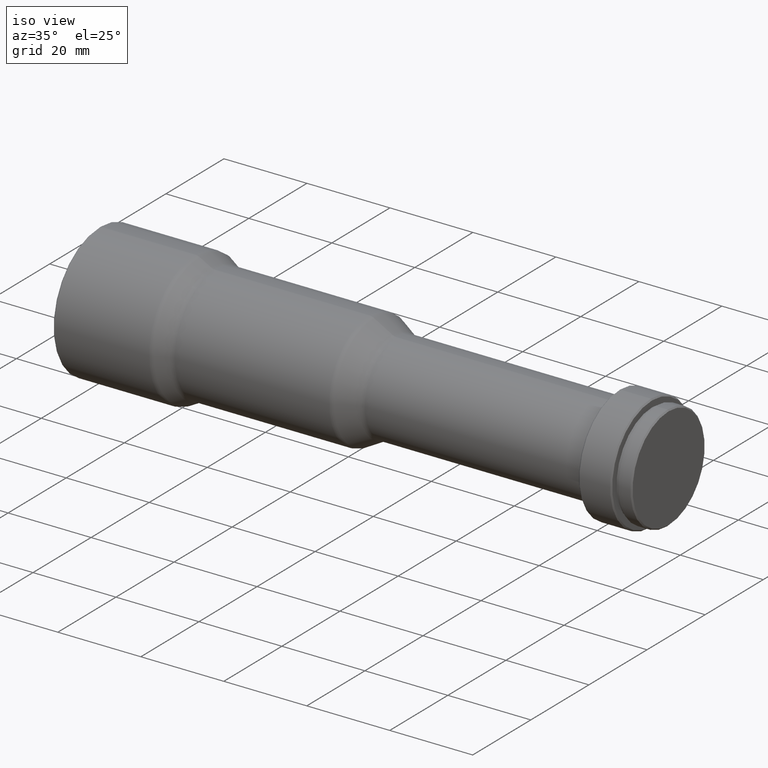
[diagram: clean part render]
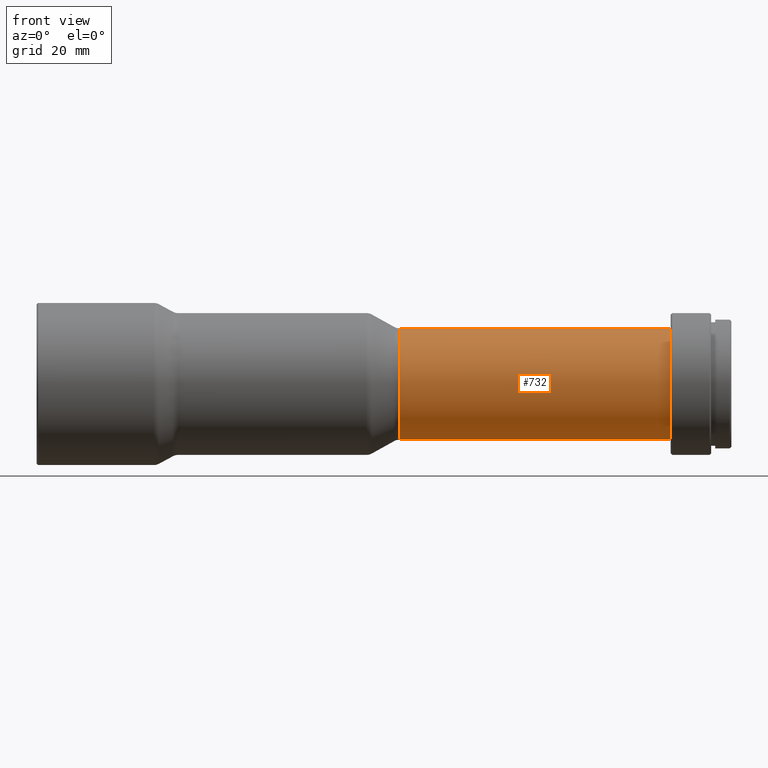
[diagram: tour spotlight — one face highlighted and labeled with its STEP entity id]
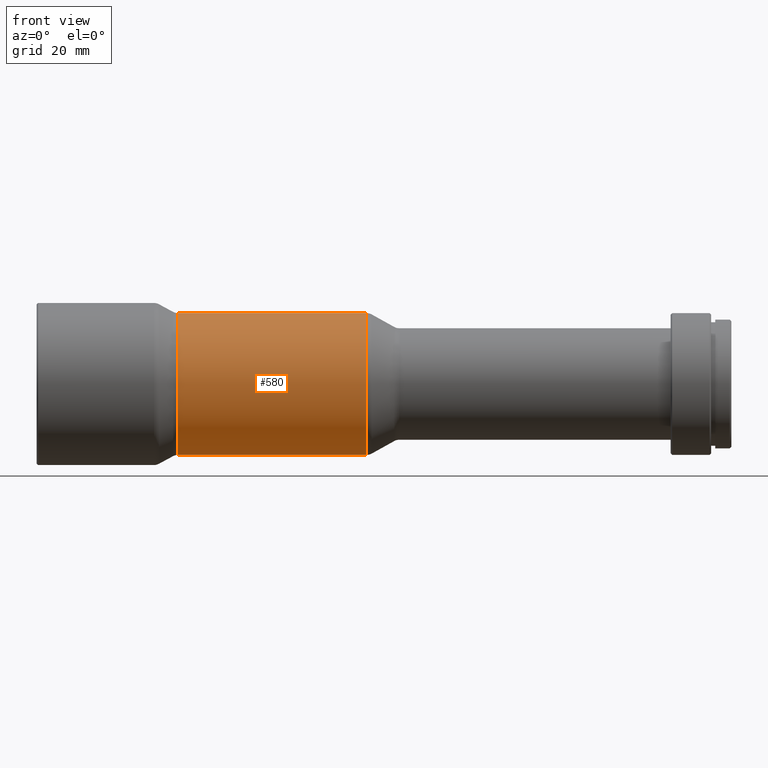
[diagram: tour spotlight — one face highlighted and labeled with its STEP entity id]
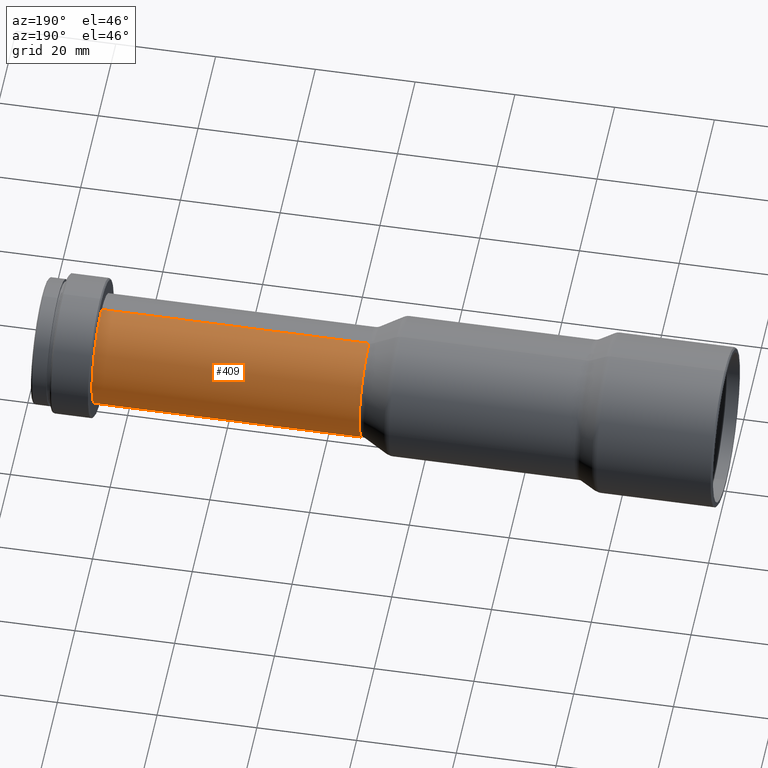
[diagram: tour spotlight — one face highlighted and labeled with its STEP entity id]
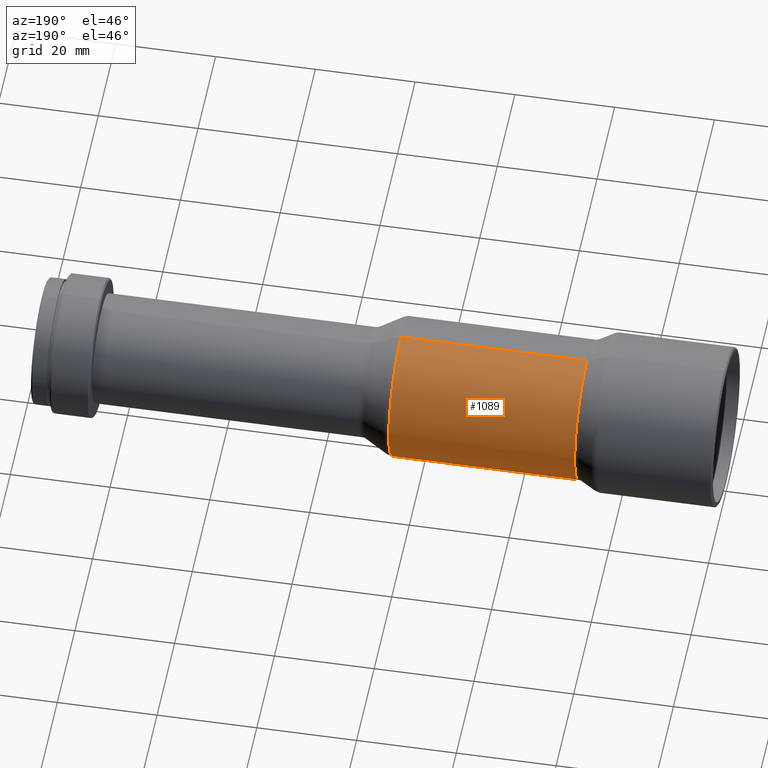
[diagram: tour spotlight — one face highlighted and labeled with its STEP entity id]
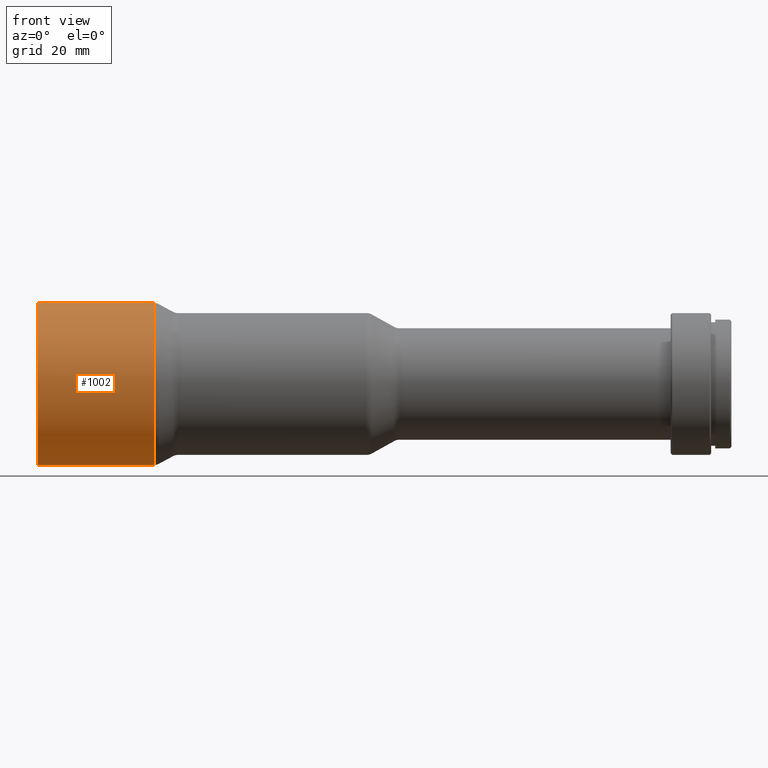
[diagram: tour spotlight — one face highlighted and labeled with its STEP entity id]
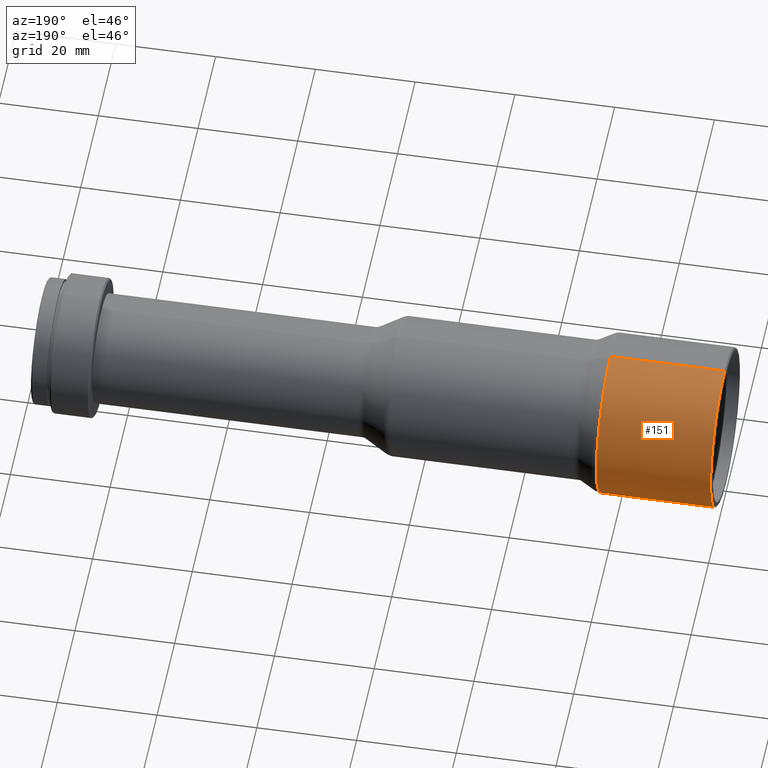
[diagram: tour spotlight — one face highlighted and labeled with its STEP entity id]
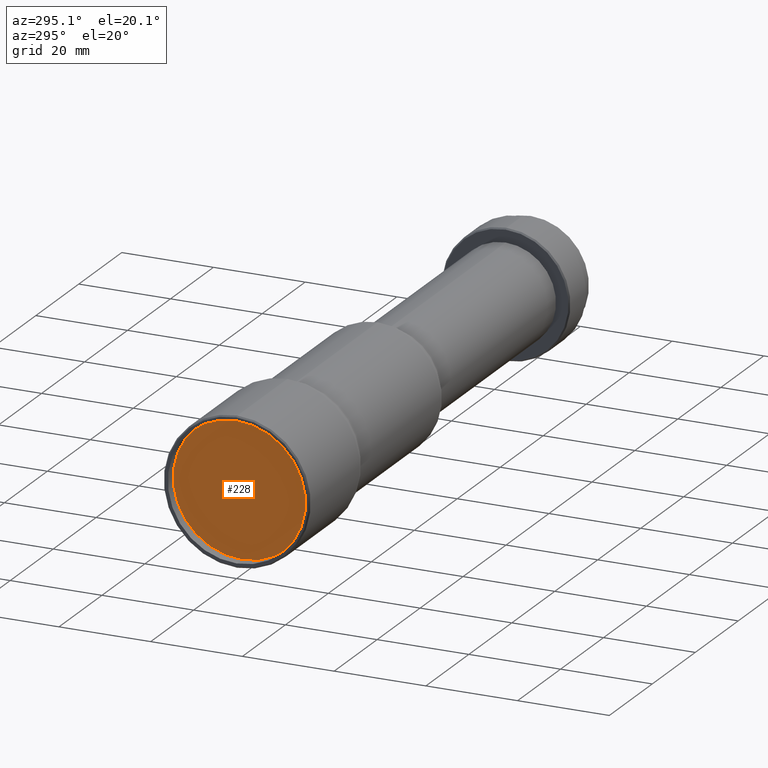
[diagram: tour spotlight — one face highlighted and labeled with its STEP entity id]
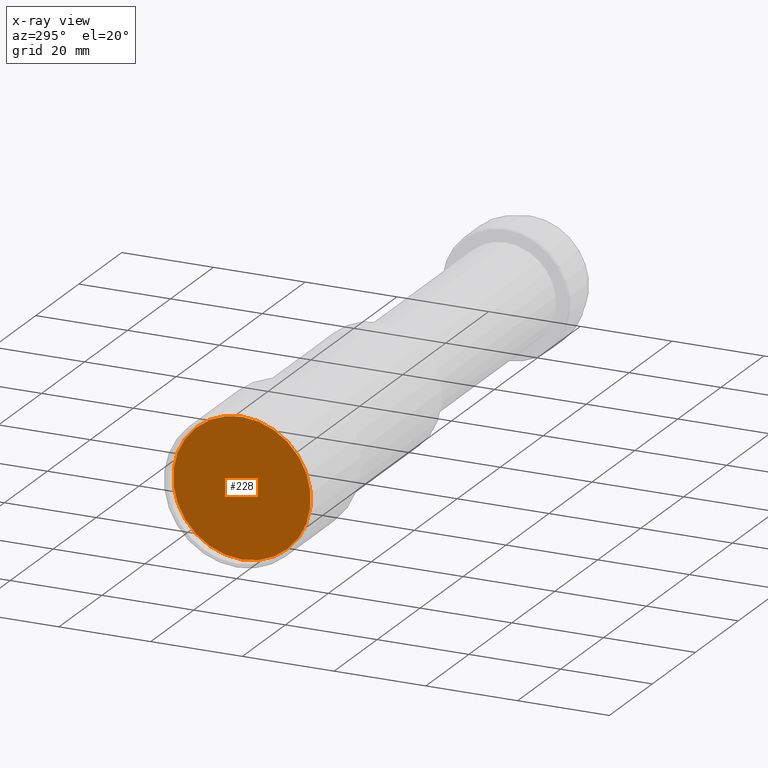
[diagram: x-ray of the same camera — body ghosted, this tour face saturated]
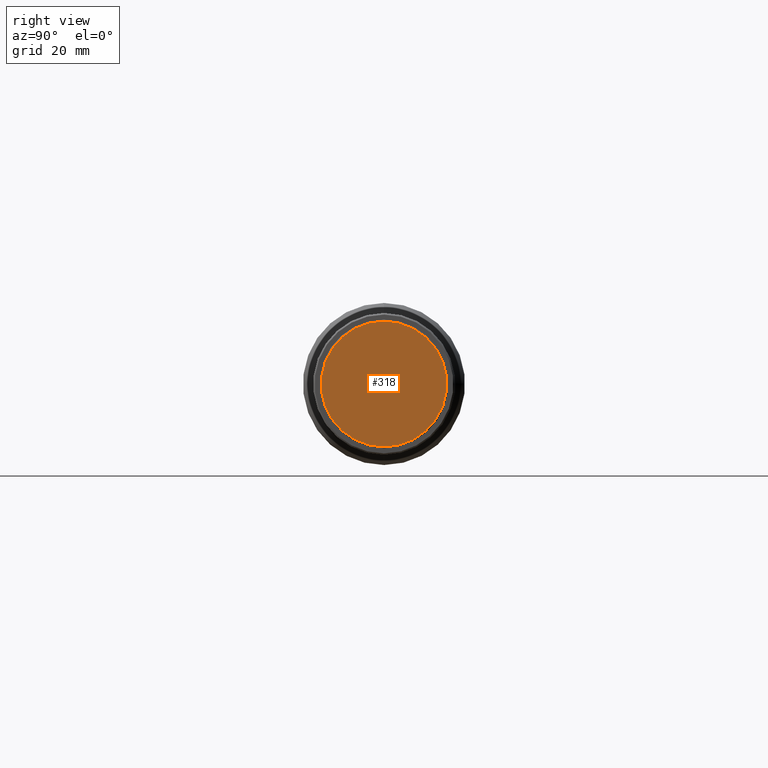
[diagram: tour spotlight — one face highlighted and labeled with its STEP entity id]
A machine part: a face-by-face anatomy tour. The part has 40 B-rep faces; the first image is the clean iso view, then the 8 largest visible faces are spotlighted one at a time (largest first), each with its STEP entity span.

Face 1 — front view, entity #732. In plain terms, the highlighted cylindrical surface (partial cylindrical patch) has radius 11 mm, axis along (-1, -0, -0).
Definition (entity closure, byte-faithful):
#23 = ORIENTED_EDGE ( 'NONE', *, *, #183, .T. ) ;
#59 = AXIS2_PLACEMENT_3D ( 'NONE', #166, #941, #923 ) ;
#104 = CARTESIAN_POINT ( 'NONE',  ( 125.1999999999999700, 0.0000000000000000000, 11.00000000000000000 ) ) ;
#166 = CARTESIAN_POINT ( 'NONE',  ( 71.61825205639480900, 0.0000000000000000000, 0.0000000000000000000 ) ) ;
#183 = EDGE_CURVE ( 'NONE', #1058, #799, #1022, .T. ) ;
#212 = ORIENTED_EDGE ( 'NONE', *, *, #367, .F. ) ;
#288 = CIRCLE ( 'NONE', #59, 11.00000000000000000 ) ;
#322 = CARTESIAN_POINT ( 'NONE',  ( 125.1999999999999700, 1.347111479062088400E-015, -11.00000000000000000 ) ) ;
#343 = VERTEX_POINT ( 'NONE', #933 ) ;
#350 = FACE_OUTER_BOUND ( 'NONE', #572, .T. ) ;
#355 = ORIENTED_EDGE ( 'NONE', *, *, #685, .T. ) ;
#367 = EDGE_CURVE ( 'NONE', #810, #343, #288, .T. ) ;
#452 = DIRECTION ( 'NONE',  ( -1.000000000000000000, -0.0000000000000000000, -0.0000000000000000000 ) ) ;
#461 = ORIENTED_EDGE ( 'NONE', *, *, #899, .F. ) ;
#466 = VECTOR ( 'NONE', #655, 1000.000000000000000 ) ;
#468 = CYLINDRICAL_SURFACE ( 'NONE', #561, 11.00000000000000000 ) ;
#469 = CARTESIAN_POINT ( 'NONE',  ( 71.61825205639480900, 1.347111479062088400E-015, -11.00000000000000000 ) ) ;
#492 = CARTESIAN_POINT ( 'NONE',  ( -3.741758549102351900, 1.347111479062088400E-015, -11.00000000000000000 ) ) ;
#543 = DIRECTION ( 'NONE',  ( 0.0000000000000000000, 0.0000000000000000000, 1.000000000000000000 ) ) ;
#556 = DIRECTION ( 'NONE',  ( -1.000000000000000000, -0.0000000000000000000, -0.0000000000000000000 ) ) ;
#561 = AXIS2_PLACEMENT_3D ( 'NONE', #627, #556, #543 ) ;
#572 = EDGE_LOOP ( 'NONE', ( #461, #23, #355, #212 ) ) ;
#627 = CARTESIAN_POINT ( 'NONE',  ( -3.741758549102351900, 0.0000000000000000000, 0.0000000000000000000 ) ) ;
#655 = DIRECTION ( 'NONE',  ( -1.000000000000000000, -0.0000000000000000000, -0.0000000000000000000 ) ) ;
#665 = CARTESIAN_POINT ( 'NONE',  ( 125.1999999999999700, 0.0000000000000000000, 0.0000000000000000000 ) ) ;
#685 = EDGE_CURVE ( 'NONE', #799, #343, #1039, .T. ) ;
#694 = VECTOR ( 'NONE', #452, 1000.000000000000000 ) ;
#732 = ADVANCED_FACE ( 'NONE', ( #350 ), #468, .T. ) ;
#799 = VERTEX_POINT ( 'NONE', #104 ) ;
#810 = VERTEX_POINT ( 'NONE', #469 ) ;
#862 = AXIS2_PLACEMENT_3D ( 'NONE', #665, #1003, #1101 ) ;
#899 = EDGE_CURVE ( 'NONE', #1058, #810, #949, .T. ) ;
#923 = DIRECTION ( 'NONE',  ( 0.0000000000000000000, 0.0000000000000000000, 1.000000000000000000 ) ) ;
#933 = CARTESIAN_POINT ( 'NONE',  ( 71.61825205639480900, 0.0000000000000000000, 11.00000000000000000 ) ) ;
#941 = DIRECTION ( 'NONE',  ( -1.000000000000000000, -0.0000000000000000000, -0.0000000000000000000 ) ) ;
#945 = CARTESIAN_POINT ( 'NONE',  ( -3.741758549102351900, 0.0000000000000000000, 11.00000000000000000 ) ) ;
#949 = LINE ( 'NONE', #492, #466 ) ;
#1003 = DIRECTION ( 'NONE',  ( -1.000000000000000000, -0.0000000000000000000, -0.0000000000000000000 ) ) ;
#1022 = CIRCLE ( 'NONE', #862, 11.00000000000000000 ) ;
#1039 = LINE ( 'NONE', #945, #694 ) ;
#1058 = VERTEX_POINT ( 'NONE', #322 ) ;
#1101 = DIRECTION ( 'NONE',  ( 0.0000000000000000000, 0.0000000000000000000, 1.000000000000000000 ) ) ;

Face 2 — front view, entity #580. In plain terms, the highlighted cylindrical surface (partial cylindrical patch) has radius 14 mm, axis along (-1, -0, -0).
Definition (entity closure, byte-faithful):
#4 = VECTOR ( 'NONE', #53, 1000.000000000000000 ) ;
#53 = DIRECTION ( 'NONE',  ( -1.000000000000000000, -0.0000000000000000000, -0.0000000000000000000 ) ) ;
#66 = VERTEX_POINT ( 'NONE', #566 ) ;
#74 = AXIS2_PLACEMENT_3D ( 'NONE', #390, #887, #1079 ) ;
#81 = DIRECTION ( 'NONE',  ( -1.000000000000000000, -0.0000000000000000000, -0.0000000000000000000 ) ) ;
#126 = VERTEX_POINT ( 'NONE', #811 ) ;
#138 = CARTESIAN_POINT ( 'NONE',  ( -3.741758549102351900, 0.0000000000000000000, 0.0000000000000000000 ) ) ;
#279 = ORIENTED_EDGE ( 'NONE', *, *, #841, .T. ) ;
#312 = DIRECTION ( 'NONE',  ( 0.0000000000000000000, 0.0000000000000000000, 1.000000000000000000 ) ) ;
#320 = DIRECTION ( 'NONE',  ( -1.000000000000000000, -0.0000000000000000000, -0.0000000000000000000 ) ) ;
#361 = AXIS2_PLACEMENT_3D ( 'NONE', #138, #81, #312 ) ;
#377 = LINE ( 'NONE', #982, #4 ) ;
#385 = CARTESIAN_POINT ( 'NONE',  ( -3.741758549102351900, 1.714505518806294800E-015, -14.00000000000000400 ) ) ;
#390 = CARTESIAN_POINT ( 'NONE',  ( 65.18174794360518800, 0.0000000000000000000, 0.0000000000000000000 ) ) ;
#418 = DIRECTION ( 'NONE',  ( 0.0000000000000000000, 0.0000000000000000000, 1.000000000000000000 ) ) ;
#438 = CARTESIAN_POINT ( 'NONE',  ( 27.90594816896262700, 1.714505518806294800E-015, -14.00000000000000200 ) ) ;
#479 = FACE_OUTER_BOUND ( 'NONE', #647, .T. ) ;
#522 = ORIENTED_EDGE ( 'NONE', *, *, #881, .F. ) ;
#566 = CARTESIAN_POINT ( 'NONE',  ( 65.18174794360518800, 0.0000000000000000000, 14.00000000000000500 ) ) ;
#569 = CARTESIAN_POINT ( 'NONE',  ( 27.90594816896262700, 0.0000000000000000000, 14.00000000000000200 ) ) ;
#580 = ADVANCED_FACE ( 'NONE', ( #479 ), #924, .T. ) ;
#647 = EDGE_LOOP ( 'NONE', ( #522, #279, #1045, #1001 ) ) ;
#713 = CIRCLE ( 'NONE', #983, 14.00000000000000200 ) ;
#726 = VECTOR ( 'NONE', #1093, 1000.000000000000000 ) ;
#739 = LINE ( 'NONE', #385, #726 ) ;
#763 = CIRCLE ( 'NONE', #74, 14.00000000000000500 ) ;
#811 = CARTESIAN_POINT ( 'NONE',  ( 65.18174794360518800, 1.714505518806294800E-015, -14.00000000000000500 ) ) ;
#841 = EDGE_CURVE ( 'NONE', #126, #66, #763, .T. ) ;
#847 = EDGE_CURVE ( 'NONE', #66, #970, #377, .T. ) ;
#881 = EDGE_CURVE ( 'NONE', #126, #1068, #739, .T. ) ;
#887 = DIRECTION ( 'NONE',  ( -1.000000000000000000, -0.0000000000000000000, -0.0000000000000000000 ) ) ;
#924 = CYLINDRICAL_SURFACE ( 'NONE', #361, 14.00000000000000400 ) ;
#930 = CARTESIAN_POINT ( 'NONE',  ( 27.90594816896262700, 0.0000000000000000000, 0.0000000000000000000 ) ) ;
#970 = VERTEX_POINT ( 'NONE', #569 ) ;
#982 = CARTESIAN_POINT ( 'NONE',  ( -3.741758549102351900, 0.0000000000000000000, 14.00000000000000400 ) ) ;
#983 = AXIS2_PLACEMENT_3D ( 'NONE', #930, #320, #418 ) ;
#996 = EDGE_CURVE ( 'NONE', #1068, #970, #713, .T. ) ;
#1001 = ORIENTED_EDGE ( 'NONE', *, *, #996, .F. ) ;
#1045 = ORIENTED_EDGE ( 'NONE', *, *, #847, .T. ) ;
#1068 = VERTEX_POINT ( 'NONE', #438 ) ;
#1079 = DIRECTION ( 'NONE',  ( 0.0000000000000000000, 0.0000000000000000000, 1.000000000000000000 ) ) ;
#1093 = DIRECTION ( 'NONE',  ( -1.000000000000000000, -0.0000000000000000000, -0.0000000000000000000 ) ) ;

Face 3 — auxiliary view, entity #409. In plain terms, the highlighted cylindrical surface (partial cylindrical patch) has radius 11 mm, axis along (-1, -0, -0).
Definition (entity closure, byte-faithful):
#93 = CARTESIAN_POINT ( 'NONE',  ( -3.741758549102351900, 0.0000000000000000000, 0.0000000000000000000 ) ) ;
#104 = CARTESIAN_POINT ( 'NONE',  ( 125.1999999999999700, 0.0000000000000000000, 11.00000000000000000 ) ) ;
#113 = CIRCLE ( 'NONE', #120, 11.00000000000000000 ) ;
#119 = EDGE_CURVE ( 'NONE', #799, #1058, #113, .T. ) ;
#120 = AXIS2_PLACEMENT_3D ( 'NONE', #975, #389, #1078 ) ;
#173 = CARTESIAN_POINT ( 'NONE',  ( 71.61825205639480900, 0.0000000000000000000, 0.0000000000000000000 ) ) ;
#235 = AXIS2_PLACEMENT_3D ( 'NONE', #93, #628, #860 ) ;
#238 = EDGE_LOOP ( 'NONE', ( #487, #408, #748, #900 ) ) ;
#246 = DIRECTION ( 'NONE',  ( -1.000000000000000000, -0.0000000000000000000, -0.0000000000000000000 ) ) ;
#310 = EDGE_CURVE ( 'NONE', #343, #810, #514, .T. ) ;
#322 = CARTESIAN_POINT ( 'NONE',  ( 125.1999999999999700, 1.347111479062088400E-015, -11.00000000000000000 ) ) ;
#343 = VERTEX_POINT ( 'NONE', #933 ) ;
#389 = DIRECTION ( 'NONE',  ( -1.000000000000000000, -0.0000000000000000000, -0.0000000000000000000 ) ) ;
#408 = ORIENTED_EDGE ( 'NONE', *, *, #899, .T. ) ;
#409 = ADVANCED_FACE ( 'NONE', ( #456 ), #706, .T. ) ;
#452 = DIRECTION ( 'NONE',  ( -1.000000000000000000, -0.0000000000000000000, -0.0000000000000000000 ) ) ;
#456 = FACE_OUTER_BOUND ( 'NONE', #238, .T. ) ;
#466 = VECTOR ( 'NONE', #655, 1000.000000000000000 ) ;
#469 = CARTESIAN_POINT ( 'NONE',  ( 71.61825205639480900, 1.347111479062088400E-015, -11.00000000000000000 ) ) ;
#487 = ORIENTED_EDGE ( 'NONE', *, *, #119, .T. ) ;
#492 = CARTESIAN_POINT ( 'NONE',  ( -3.741758549102351900, 1.347111479062088400E-015, -11.00000000000000000 ) ) ;
#514 = CIRCLE ( 'NONE', #716, 11.00000000000000000 ) ;
#628 = DIRECTION ( 'NONE',  ( -1.000000000000000000, -0.0000000000000000000, -0.0000000000000000000 ) ) ;
#655 = DIRECTION ( 'NONE',  ( -1.000000000000000000, -0.0000000000000000000, -0.0000000000000000000 ) ) ;
#685 = EDGE_CURVE ( 'NONE', #799, #343, #1039, .T. ) ;
#694 = VECTOR ( 'NONE', #452, 1000.000000000000000 ) ;
#706 = CYLINDRICAL_SURFACE ( 'NONE', #235, 11.00000000000000000 ) ;
#716 = AXIS2_PLACEMENT_3D ( 'NONE', #173, #246, #768 ) ;
#748 = ORIENTED_EDGE ( 'NONE', *, *, #310, .F. ) ;
#768 = DIRECTION ( 'NONE',  ( 0.0000000000000000000, 0.0000000000000000000, 1.000000000000000000 ) ) ;
#799 = VERTEX_POINT ( 'NONE', #104 ) ;
#810 = VERTEX_POINT ( 'NONE', #469 ) ;
#860 = DIRECTION ( 'NONE',  ( 0.0000000000000000000, 0.0000000000000000000, 1.000000000000000000 ) ) ;
#899 = EDGE_CURVE ( 'NONE', #1058, #810, #949, .T. ) ;
#900 = ORIENTED_EDGE ( 'NONE', *, *, #685, .F. ) ;
#933 = CARTESIAN_POINT ( 'NONE',  ( 71.61825205639480900, 0.0000000000000000000, 11.00000000000000000 ) ) ;
#945 = CARTESIAN_POINT ( 'NONE',  ( -3.741758549102351900, 0.0000000000000000000, 11.00000000000000000 ) ) ;
#949 = LINE ( 'NONE', #492, #466 ) ;
#975 = CARTESIAN_POINT ( 'NONE',  ( 125.1999999999999700, 0.0000000000000000000, 0.0000000000000000000 ) ) ;
#1039 = LINE ( 'NONE', #945, #694 ) ;
#1058 = VERTEX_POINT ( 'NONE', #322 ) ;
#1078 = DIRECTION ( 'NONE',  ( 0.0000000000000000000, 0.0000000000000000000, 1.000000000000000000 ) ) ;

Face 4 — auxiliary view, entity #1089. In plain terms, the highlighted cylindrical surface (partial cylindrical patch) has radius 14 mm, axis along (-1, -0, -0).
Definition (entity closure, byte-faithful):
#4 = VECTOR ( 'NONE', #53, 1000.000000000000000 ) ;
#21 = CARTESIAN_POINT ( 'NONE',  ( -3.741758549102351900, 0.0000000000000000000, 0.0000000000000000000 ) ) ;
#26 = DIRECTION ( 'NONE',  ( 0.0000000000000000000, 0.0000000000000000000, 1.000000000000000000 ) ) ;
#39 = ORIENTED_EDGE ( 'NONE', *, *, #209, .F. ) ;
#53 = DIRECTION ( 'NONE',  ( -1.000000000000000000, -0.0000000000000000000, -0.0000000000000000000 ) ) ;
#66 = VERTEX_POINT ( 'NONE', #566 ) ;
#92 = DIRECTION ( 'NONE',  ( 0.0000000000000000000, 0.0000000000000000000, 1.000000000000000000 ) ) ;
#96 = CARTESIAN_POINT ( 'NONE',  ( 65.18174794360518800, 0.0000000000000000000, 0.0000000000000000000 ) ) ;
#126 = VERTEX_POINT ( 'NONE', #811 ) ;
#152 = CARTESIAN_POINT ( 'NONE',  ( 27.90594816896262700, 0.0000000000000000000, 0.0000000000000000000 ) ) ;
#182 = FACE_OUTER_BOUND ( 'NONE', #891, .T. ) ;
#209 = EDGE_CURVE ( 'NONE', #970, #1068, #1053, .T. ) ;
#236 = DIRECTION ( 'NONE',  ( -1.000000000000000000, -0.0000000000000000000, -0.0000000000000000000 ) ) ;
#377 = LINE ( 'NONE', #982, #4 ) ;
#385 = CARTESIAN_POINT ( 'NONE',  ( -3.741758549102351900, 1.714505518806294800E-015, -14.00000000000000400 ) ) ;
#438 = CARTESIAN_POINT ( 'NONE',  ( 27.90594816896262700, 1.714505518806294800E-015, -14.00000000000000200 ) ) ;
#444 = DIRECTION ( 'NONE',  ( -1.000000000000000000, -0.0000000000000000000, -0.0000000000000000000 ) ) ;
#464 = ORIENTED_EDGE ( 'NONE', *, *, #614, .T. ) ;
#481 = AXIS2_PLACEMENT_3D ( 'NONE', #21, #444, #92 ) ;
#566 = CARTESIAN_POINT ( 'NONE',  ( 65.18174794360518800, 0.0000000000000000000, 14.00000000000000500 ) ) ;
#569 = CARTESIAN_POINT ( 'NONE',  ( 27.90594816896262700, 0.0000000000000000000, 14.00000000000000200 ) ) ;
#595 = DIRECTION ( 'NONE',  ( 0.0000000000000000000, 0.0000000000000000000, 1.000000000000000000 ) ) ;
#614 = EDGE_CURVE ( 'NONE', #66, #126, #882, .T. ) ;
#701 = DIRECTION ( 'NONE',  ( -1.000000000000000000, -0.0000000000000000000, -0.0000000000000000000 ) ) ;
#726 = VECTOR ( 'NONE', #1093, 1000.000000000000000 ) ;
#739 = LINE ( 'NONE', #385, #726 ) ;
#750 = AXIS2_PLACEMENT_3D ( 'NONE', #152, #236, #595 ) ;
#811 = CARTESIAN_POINT ( 'NONE',  ( 65.18174794360518800, 1.714505518806294800E-015, -14.00000000000000500 ) ) ;
#847 = EDGE_CURVE ( 'NONE', #66, #970, #377, .T. ) ;
#849 = ORIENTED_EDGE ( 'NONE', *, *, #881, .T. ) ;
#877 = CYLINDRICAL_SURFACE ( 'NONE', #481, 14.00000000000000400 ) ;
#881 = EDGE_CURVE ( 'NONE', #126, #1068, #739, .T. ) ;
#882 = CIRCLE ( 'NONE', #931, 14.00000000000000500 ) ;
#891 = EDGE_LOOP ( 'NONE', ( #464, #849, #39, #986 ) ) ;
#931 = AXIS2_PLACEMENT_3D ( 'NONE', #96, #701, #26 ) ;
#970 = VERTEX_POINT ( 'NONE', #569 ) ;
#982 = CARTESIAN_POINT ( 'NONE',  ( -3.741758549102351900, 0.0000000000000000000, 14.00000000000000400 ) ) ;
#986 = ORIENTED_EDGE ( 'NONE', *, *, #847, .F. ) ;
#1053 = CIRCLE ( 'NONE', #750, 14.00000000000000200 ) ;
#1068 = VERTEX_POINT ( 'NONE', #438 ) ;
#1089 = ADVANCED_FACE ( 'NONE', ( #182 ), #877, .T. ) ;
#1093 = DIRECTION ( 'NONE',  ( -1.000000000000000000, -0.0000000000000000000, -0.0000000000000000000 ) ) ;

Face 5 — front view, entity #1002. In plain terms, the highlighted cylindrical surface (partial cylindrical patch) has radius 16 mm, axis along (-1, -0, -0).
Definition (entity closure, byte-faithful):
#17 = VECTOR ( 'NONE', #134, 1000.000000000000000 ) ;
#70 = CARTESIAN_POINT ( 'NONE',  ( -3.741758549102351900, 0.0000000000000000000, 0.0000000000000000000 ) ) ;
#118 = CARTESIAN_POINT ( 'NONE',  ( -3.741758549102351900, 0.0000000000000000000, 16.00000000000000400 ) ) ;
#134 = DIRECTION ( 'NONE',  ( -1.000000000000000000, -0.0000000000000000000, -0.0000000000000000000 ) ) ;
#135 = CIRCLE ( 'NONE', #356, 16.00000000000000400 ) ;
#189 = DIRECTION ( 'NONE',  ( 0.0000000000000000000, 0.0000000000000000000, 1.000000000000000000 ) ) ;
#197 = DIRECTION ( 'NONE',  ( -1.000000000000000000, -0.0000000000000000000, -0.0000000000000000000 ) ) ;
#211 = VERTEX_POINT ( 'NONE', #504 ) ;
#249 = CYLINDRICAL_SURFACE ( 'NONE', #410, 16.00000000000000400 ) ;
#281 = DIRECTION ( 'NONE',  ( -1.000000000000000000, -0.0000000000000000000, -0.0000000000000000000 ) ) ;
#305 = ORIENTED_EDGE ( 'NONE', *, *, #802, .T. ) ;
#307 = CIRCLE ( 'NONE', #971, 16.00000000000000400 ) ;
#334 = FACE_OUTER_BOUND ( 'NONE', #960, .T. ) ;
#335 = ORIENTED_EDGE ( 'NONE', *, *, #1086, .F. ) ;
#356 = AXIS2_PLACEMENT_3D ( 'NONE', #710, #281, #189 ) ;
#410 = AXIS2_PLACEMENT_3D ( 'NONE', #70, #594, #430 ) ;
#419 = ORIENTED_EDGE ( 'NONE', *, *, #791, .T. ) ;
#430 = DIRECTION ( 'NONE',  ( 0.0000000000000000000, 0.0000000000000000000, 1.000000000000000000 ) ) ;
#462 = VERTEX_POINT ( 'NONE', #955 ) ;
#504 = CARTESIAN_POINT ( 'NONE',  ( 0.3000000000000003800, 1.959434878635765500E-015, -16.00000000000000400 ) ) ;
#525 = VECTOR ( 'NONE', #197, 1000.000000000000000 ) ;
#567 = VERTEX_POINT ( 'NONE', #1023 ) ;
#594 = DIRECTION ( 'NONE',  ( -1.000000000000000000, -0.0000000000000000000, -0.0000000000000000000 ) ) ;
#710 = CARTESIAN_POINT ( 'NONE',  ( 23.19405183103737000, 0.0000000000000000000, 0.0000000000000000000 ) ) ;
#775 = DIRECTION ( 'NONE',  ( 0.0000000000000000000, 0.0000000000000000000, 1.000000000000000000 ) ) ;
#789 = LINE ( 'NONE', #118, #525 ) ;
#791 = EDGE_CURVE ( 'NONE', #462, #567, #135, .T. ) ;
#802 = EDGE_CURVE ( 'NONE', #567, #1012, #789, .T. ) ;
#823 = CARTESIAN_POINT ( 'NONE',  ( -3.741758549102351900, 1.959434878635765500E-015, -16.00000000000000400 ) ) ;
#912 = LINE ( 'NONE', #823, #17 ) ;
#932 = CARTESIAN_POINT ( 'NONE',  ( 0.3000000000000003800, 0.0000000000000000000, 0.0000000000000000000 ) ) ;
#955 = CARTESIAN_POINT ( 'NONE',  ( 23.19405183103737000, 1.959434878635765500E-015, -16.00000000000000400 ) ) ;
#957 = EDGE_CURVE ( 'NONE', #462, #211, #912, .T. ) ;
#960 = EDGE_LOOP ( 'NONE', ( #1103, #419, #305, #335 ) ) ;
#971 = AXIS2_PLACEMENT_3D ( 'NONE', #932, #1029, #775 ) ;
#1002 = ADVANCED_FACE ( 'NONE', ( #334 ), #249, .T. ) ;
#1012 = VERTEX_POINT ( 'NONE', #1018 ) ;
#1018 = CARTESIAN_POINT ( 'NONE',  ( 0.3000000000000003800, 0.0000000000000000000, 16.00000000000000400 ) ) ;
#1023 = CARTESIAN_POINT ( 'NONE',  ( 23.19405183103737000, 0.0000000000000000000, 16.00000000000000400 ) ) ;
#1029 = DIRECTION ( 'NONE',  ( -1.000000000000000000, -0.0000000000000000000, -0.0000000000000000000 ) ) ;
#1086 = EDGE_CURVE ( 'NONE', #211, #1012, #307, .T. ) ;
#1103 = ORIENTED_EDGE ( 'NONE', *, *, #957, .F. ) ;

Face 6 — auxiliary view, entity #151. In plain terms, the highlighted cylindrical surface (partial cylindrical patch) has radius 16 mm, axis along (-1, -0, -0).
Definition (entity closure, byte-faithful):
#1 = CARTESIAN_POINT ( 'NONE',  ( 0.3000000000000003800, 0.0000000000000000000, 0.0000000000000000000 ) ) ;
#17 = VECTOR ( 'NONE', #134, 1000.000000000000000 ) ;
#28 = FACE_OUTER_BOUND ( 'NONE', #58, .T. ) ;
#58 = EDGE_LOOP ( 'NONE', ( #346, #989, #837, #403 ) ) ;
#68 = CARTESIAN_POINT ( 'NONE',  ( 23.19405183103737000, 0.0000000000000000000, 0.0000000000000000000 ) ) ;
#118 = CARTESIAN_POINT ( 'NONE',  ( -3.741758549102351900, 0.0000000000000000000, 16.00000000000000400 ) ) ;
#134 = DIRECTION ( 'NONE',  ( -1.000000000000000000, -0.0000000000000000000, -0.0000000000000000000 ) ) ;
#151 = ADVANCED_FACE ( 'NONE', ( #28 ), #953, .T. ) ;
#197 = DIRECTION ( 'NONE',  ( -1.000000000000000000, -0.0000000000000000000, -0.0000000000000000000 ) ) ;
#202 = EDGE_CURVE ( 'NONE', #567, #462, #681, .T. ) ;
#211 = VERTEX_POINT ( 'NONE', #504 ) ;
#231 = DIRECTION ( 'NONE',  ( 0.0000000000000000000, 0.0000000000000000000, 1.000000000000000000 ) ) ;
#346 = ORIENTED_EDGE ( 'NONE', *, *, #202, .T. ) ;
#370 = EDGE_CURVE ( 'NONE', #1012, #211, #565, .T. ) ;
#403 = ORIENTED_EDGE ( 'NONE', *, *, #802, .F. ) ;
#462 = VERTEX_POINT ( 'NONE', #955 ) ;
#504 = CARTESIAN_POINT ( 'NONE',  ( 0.3000000000000003800, 1.959434878635765500E-015, -16.00000000000000400 ) ) ;
#525 = VECTOR ( 'NONE', #197, 1000.000000000000000 ) ;
#565 = CIRCLE ( 'NONE', #760, 16.00000000000000400 ) ;
#567 = VERTEX_POINT ( 'NONE', #1023 ) ;
#599 = DIRECTION ( 'NONE',  ( 0.0000000000000000000, 0.0000000000000000000, 1.000000000000000000 ) ) ;
#672 = DIRECTION ( 'NONE',  ( -1.000000000000000000, -0.0000000000000000000, -0.0000000000000000000 ) ) ;
#681 = CIRCLE ( 'NONE', #771, 16.00000000000000400 ) ;
#721 = CARTESIAN_POINT ( 'NONE',  ( -3.741758549102351900, 0.0000000000000000000, 0.0000000000000000000 ) ) ;
#760 = AXIS2_PLACEMENT_3D ( 'NONE', #1, #852, #599 ) ;
#771 = AXIS2_PLACEMENT_3D ( 'NONE', #68, #672, #231 ) ;
#789 = LINE ( 'NONE', #118, #525 ) ;
#802 = EDGE_CURVE ( 'NONE', #567, #1012, #789, .T. ) ;
#823 = CARTESIAN_POINT ( 'NONE',  ( -3.741758549102351900, 1.959434878635765500E-015, -16.00000000000000400 ) ) ;
#837 = ORIENTED_EDGE ( 'NONE', *, *, #370, .F. ) ;
#852 = DIRECTION ( 'NONE',  ( -1.000000000000000000, -0.0000000000000000000, -0.0000000000000000000 ) ) ;
#889 = DIRECTION ( 'NONE',  ( 0.0000000000000000000, 0.0000000000000000000, 1.000000000000000000 ) ) ;
#912 = LINE ( 'NONE', #823, #17 ) ;
#944 = AXIS2_PLACEMENT_3D ( 'NONE', #721, #972, #889 ) ;
#953 = CYLINDRICAL_SURFACE ( 'NONE', #944, 16.00000000000000400 ) ;
#955 = CARTESIAN_POINT ( 'NONE',  ( 23.19405183103737000, 1.959434878635765500E-015, -16.00000000000000400 ) ) ;
#957 = EDGE_CURVE ( 'NONE', #462, #211, #912, .T. ) ;
#972 = DIRECTION ( 'NONE',  ( -1.000000000000000000, -0.0000000000000000000, -0.0000000000000000000 ) ) ;
#989 = ORIENTED_EDGE ( 'NONE', *, *, #957, .T. ) ;
#1012 = VERTEX_POINT ( 'NONE', #1018 ) ;
#1018 = CARTESIAN_POINT ( 'NONE',  ( 0.3000000000000003800, 0.0000000000000000000, 16.00000000000000400 ) ) ;
#1023 = CARTESIAN_POINT ( 'NONE',  ( 23.19405183103737000, 0.0000000000000000000, 16.00000000000000400 ) ) ;

Face 7 — auxiliary view, entity #228. An x-ray twin of the same camera follows (body ghosted, this face saturated) — the face is partly hidden behind the body. In plain terms, the highlighted planar face has unit normal (-1, 0, 0).
Definition (entity closure, byte-faithful):
#38 = ORIENTED_EDGE ( 'NONE', *, *, #946, .T. ) ;
#40 = CIRCLE ( 'NONE', #191, 15.00000000000000000 ) ;
#67 = DIRECTION ( 'NONE',  ( 0.0000000000000000000, 0.0000000000000000000, 1.000000000000000000 ) ) ;
#147 = DIRECTION ( 'NONE',  ( 0.0000000000000000000, 0.0000000000000000000, 1.000000000000000000 ) ) ;
#187 = ORIENTED_EDGE ( 'NONE', *, *, #264, .T. ) ;
#191 = AXIS2_PLACEMENT_3D ( 'NONE', #740, #653, #67 ) ;
#228 = ADVANCED_FACE ( 'NONE', ( #339 ), #1097, .T. ) ;
#254 = EDGE_LOOP ( 'NONE', ( #38, #187 ) ) ;
#264 = EDGE_CURVE ( 'NONE', #474, #1017, #608, .T. ) ;
#339 = FACE_OUTER_BOUND ( 'NONE', #254, .T. ) ;
#406 = CARTESIAN_POINT ( 'NONE',  ( 2.500000000000000000, 0.0000000000000000000, 0.0000000000000000000 ) ) ;
#474 = VERTEX_POINT ( 'NONE', #871 ) ;
#499 = CARTESIAN_POINT ( 'NONE',  ( 2.500000000000000000, 0.0000000000000000000, 0.0000000000000000000 ) ) ;
#608 = CIRCLE ( 'NONE', #974, 15.00000000000000000 ) ;
#653 = DIRECTION ( 'NONE',  ( -1.000000000000000000, 0.0000000000000000000, 0.0000000000000000000 ) ) ;
#664 = AXIS2_PLACEMENT_3D ( 'NONE', #499, #915, #820 ) ;
#740 = CARTESIAN_POINT ( 'NONE',  ( 2.500000000000000000, 0.0000000000000000000, 0.0000000000000000000 ) ) ;
#820 = DIRECTION ( 'NONE',  ( 0.0000000000000000000, 0.0000000000000000000, 1.000000000000000000 ) ) ;
#871 = CARTESIAN_POINT ( 'NONE',  ( 2.500000000000000000, 1.836970198721029600E-015, -15.00000000000000000 ) ) ;
#915 = DIRECTION ( 'NONE',  ( -1.000000000000000000, 0.0000000000000000000, 0.0000000000000000000 ) ) ;
#919 = CARTESIAN_POINT ( 'NONE',  ( 2.500000000000000000, 0.0000000000000000000, 15.00000000000000000 ) ) ;
#946 = EDGE_CURVE ( 'NONE', #1017, #474, #40, .T. ) ;
#974 = AXIS2_PLACEMENT_3D ( 'NONE', #406, #997, #147 ) ;
#997 = DIRECTION ( 'NONE',  ( -1.000000000000000000, 0.0000000000000000000, 0.0000000000000000000 ) ) ;
#1017 = VERTEX_POINT ( 'NONE', #919 ) ;
#1097 = PLANE ( 'NONE',  #664 ) ;

Face 8 — right view, entity #318. In plain terms, the highlighted planar face has unit normal (-1, 0, -0).
Definition (entity closure, byte-faithful):
#3 = EDGE_LOOP ( 'NONE', ( #221, #635 ) ) ;
#33 = EDGE_CURVE ( 'NONE', #124, #248, #764, .T. ) ;
#44 = CARTESIAN_POINT ( 'NONE',  ( 137.1999999999999900, 0.0000000000000000000, 0.0000000000000000000 ) ) ;
#50 = FACE_OUTER_BOUND ( 'NONE', #3, .T. ) ;
#80 = PLANE ( 'NONE',  #116 ) ;
#116 = AXIS2_PLACEMENT_3D ( 'NONE', #844, #1011, #265 ) ;
#124 = VERTEX_POINT ( 'NONE', #384 ) ;
#221 = ORIENTED_EDGE ( 'NONE', *, *, #33, .F. ) ;
#244 = AXIS2_PLACEMENT_3D ( 'NONE', #44, #729, #1071 ) ;
#248 = VERTEX_POINT ( 'NONE', #831 ) ;
#265 = DIRECTION ( 'NONE',  ( -0.0000000000000000000, 0.0000000000000000000, 1.000000000000000000 ) ) ;
#318 = ADVANCED_FACE ( 'NONE', ( #50 ), #80, .F. ) ;
#359 = CARTESIAN_POINT ( 'NONE',  ( 137.1999999999999900, 0.0000000000000000000, 0.0000000000000000000 ) ) ;
#384 = CARTESIAN_POINT ( 'NONE',  ( 137.1999999999999900, 0.0000000000000000000, 12.40000000000000400 ) ) ;
#635 = ORIENTED_EDGE ( 'NONE', *, *, #765, .F. ) ;
#729 = DIRECTION ( 'NONE',  ( -1.000000000000000000, -0.0000000000000000000, -0.0000000000000000000 ) ) ;
#764 = CIRCLE ( 'NONE', #244, 12.40000000000000400 ) ;
#765 = EDGE_CURVE ( 'NONE', #248, #124, #1098, .T. ) ;
#809 = AXIS2_PLACEMENT_3D ( 'NONE', #359, #952, #866 ) ;
#831 = CARTESIAN_POINT ( 'NONE',  ( 137.1999999999999900, 1.536931732929928800E-015, -12.40000000000000400 ) ) ;
#844 = CARTESIAN_POINT ( 'NONE',  ( 137.1999999999999900, 12.40000000000000400, 0.0000000000000000000 ) ) ;
#866 = DIRECTION ( 'NONE',  ( 0.0000000000000000000, 0.0000000000000000000, 1.000000000000000000 ) ) ;
#952 = DIRECTION ( 'NONE',  ( -1.000000000000000000, -0.0000000000000000000, -0.0000000000000000000 ) ) ;
#1011 = DIRECTION ( 'NONE',  ( -1.000000000000000000, 0.0000000000000000000, -0.0000000000000000000 ) ) ;
#1071 = DIRECTION ( 'NONE',  ( 0.0000000000000000000, 0.0000000000000000000, 1.000000000000000000 ) ) ;
#1098 = CIRCLE ( 'NONE', #809, 12.40000000000000400 ) ;